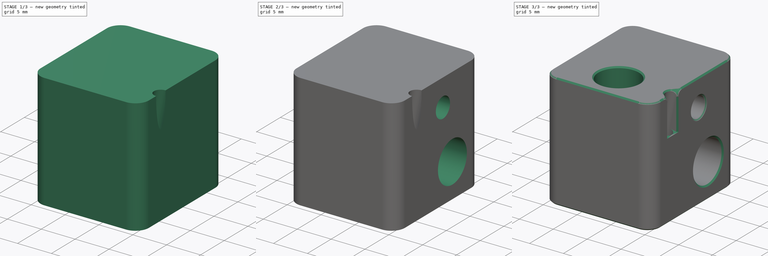
[diagram: build sequence overview — one tinted view per stage of 3, left to right]
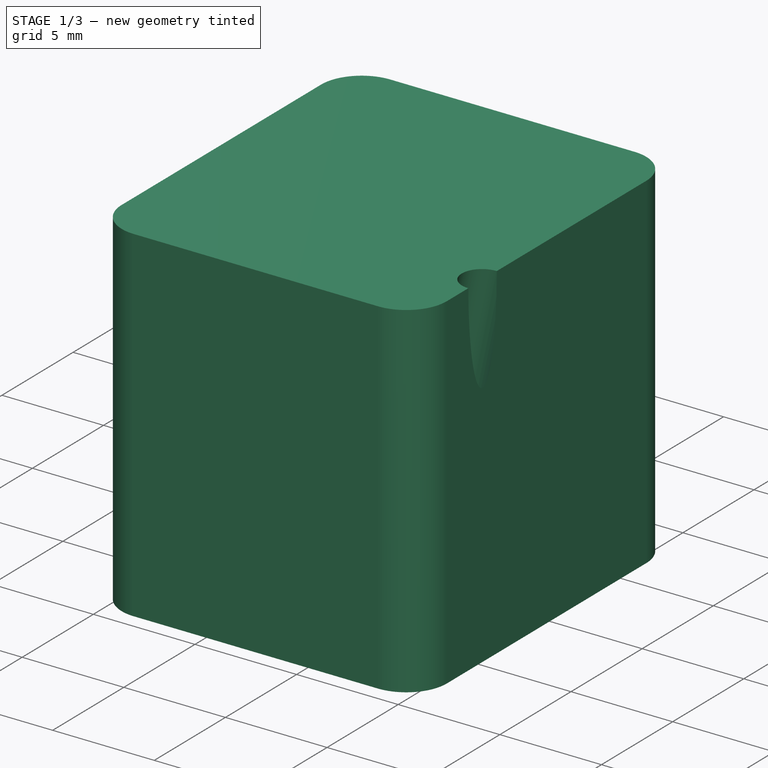
[diagram: stage 1 of 3 — iso view after this stage's code; geometry added in this stage tinted green]
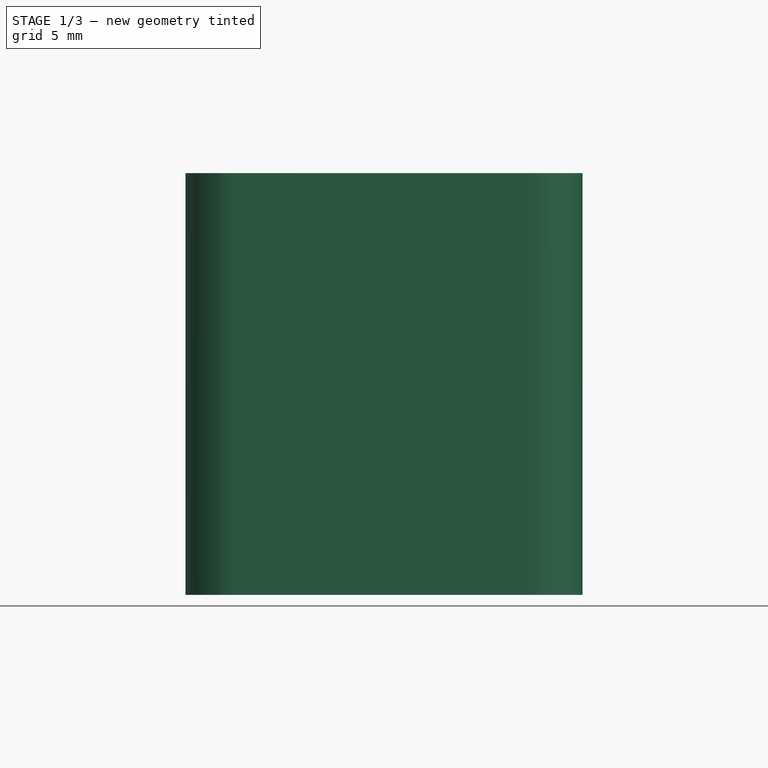
[diagram: stage 1 of 3 — front view after this stage's code; geometry added in this stage tinted green]
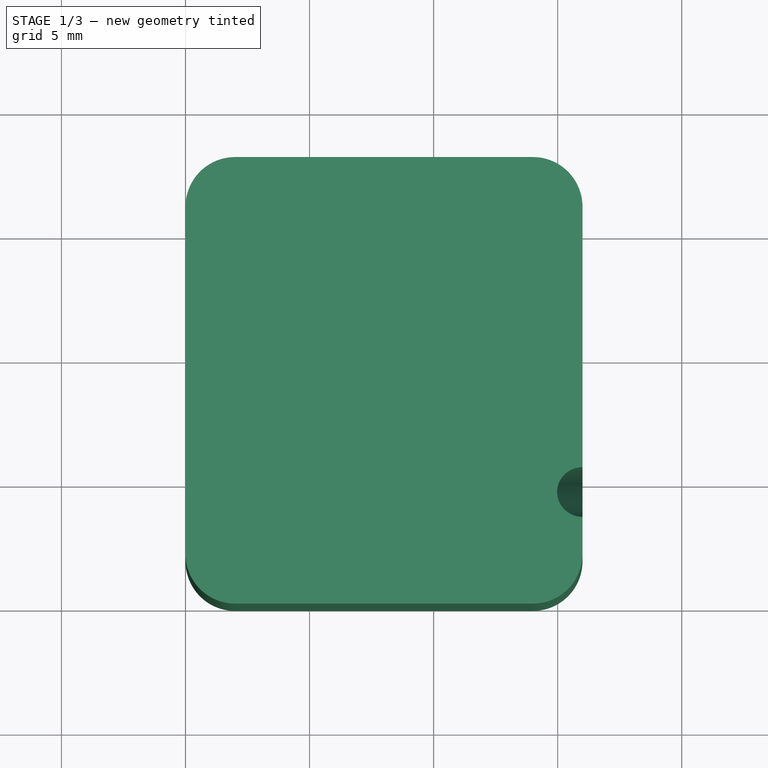
[diagram: stage 1 of 3 — top view after this stage's code; geometry added in this stage tinted green]
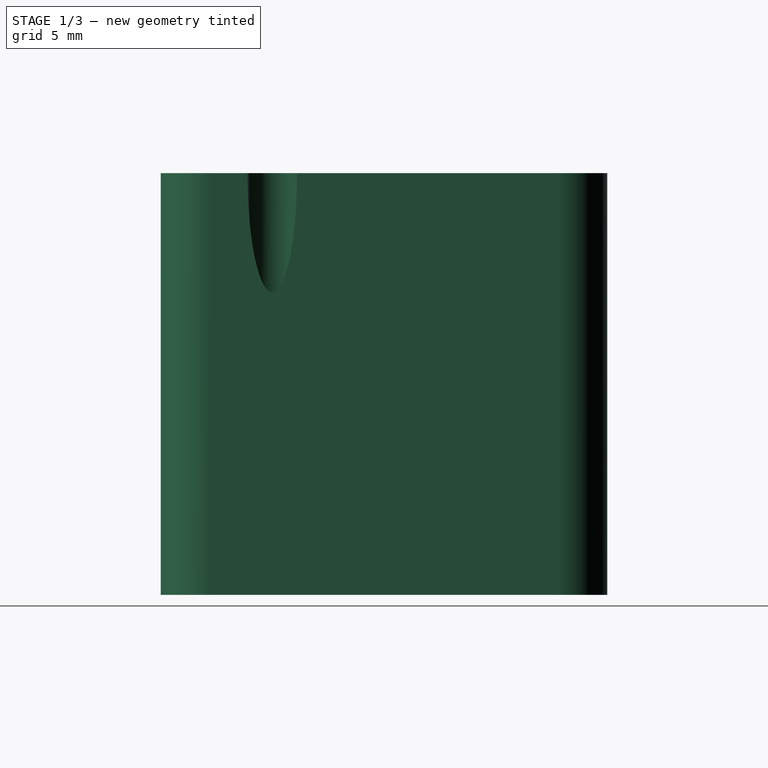
[diagram: stage 1 of 3 — right view after this stage's code; geometry added in this stage tinted green]
FCSTD DOCUMENT  (FreeCAD 0.17R13662 (Git))
Label: ao-hex_heater-block_revA
License: All rights reserved
LicenseURL: http://en.wikipedia.org/wiki/All_rights_reserved
objects: Drawing::FeatureViewPython×51, Sketcher::SketchObject×6, PartDesign::Pocket×5, Drawing::FeatureViewPart×4, PartDesign::Plane×2, PartDesign::Pad×1, PartDesign::Fillet×1, PartDesign::Chamfer×1, PartDesign::Body×1, Drawing::FeaturePage×1
note: 23 computed .brp shape members not serialized (recipe doc carries the construction recipe); baked Part::Feature solids carry a one-line shape summary decoded from their .brp

FEATURE [Sketcher::SketchObject] Sketch
  MapMode = 5
  Support = -> [XY_Plane]
  sketch-geometry (4):
    g0: LineSegment StartX=0 StartY=0 StartZ=0 EndX=16 EndY=0 EndZ=0
    g1: LineSegment StartX=16 StartY=0 StartZ=0 EndX=16 EndY=18 EndZ=0
    g2: LineSegment StartX=16 StartY=18 StartZ=0 EndX=0 EndY=18 EndZ=0
    g3: LineSegment StartX=0 StartY=18 StartZ=0 EndX=0 EndY=0 EndZ=0
  constraints (11):
    c: Coincident(g0,g1)
    c: Coincident(g1,g2)
    c: Coincident(g2,g3)
    c: Coincident(g3,g0)
    c: Horizontal(g0)
    c: Horizontal(g2)
    c: Vertical(g1)
    c: Vertical(g3)
    c: Coincident(g0,g-1)
    c: DistanceX(g2,g2) = 16
    c: DistanceY(g1,g1) = 18
FEATURE [PartDesign::Pad] Pad
  Length = 17
  Length2 = 100
  Profile = -> Sketch
  Type = 0
FEATURE [PartDesign::Fillet] Fillet
  Base = -> Pad [Edge5,Edge8,Edge2,Edge1]
  BaseFeature = -> Pad
  Radius = 2
FEATURE [Sketcher::SketchObject] Sketch001
  MapMode = 5
  Placement = pos=(0,0,17) rot=(0,0,1;0rad)
  Support = -> [Fillet]
  sketch-geometry (1):
    g0: Circle CenterX=8 CenterY=4.5 CenterZ=0 NormalX=0 NormalY=0 NormalZ=1 AngleXU=0 Radius=3
  constraints (3):
    c: DistanceX(g0) = 8
    c: DistanceY(g0) = 4.5
    c: Radius(g0) = 3
FEATURE [PartDesign::Plane] DatumPlane
  AttachmentOffset = pos=(2,0,3) rot=(0,1,0;0.20944rad)
  MapMode = 5
  Placement = pos=(2,0,20) rot=(0,1,0;0.20944rad)
FEATURE [Sketcher::SketchObject] Sketch002
  MapMode = 5
  Placement = pos=(2,0,20) rot=(0,1,0;0.20944rad)
  Support = -> [DatumPlane]
  sketch-geometry (1):
    g0: Circle CenterX=14.3178 CenterY=4.5 CenterZ=0 NormalX=0 NormalY=0 NormalZ=1 AngleXU=0 Radius=1
  constraints (2):
    c: DistanceY(g0) = 4.5
    c: Radius(g0) = 1
FEATURE [PartDesign::Pocket] Pocket001
  BaseFeature = -> Fillet
  Length = 14.75
  Length2 = 100
  Profile = -> Sketch002
  Type = 0
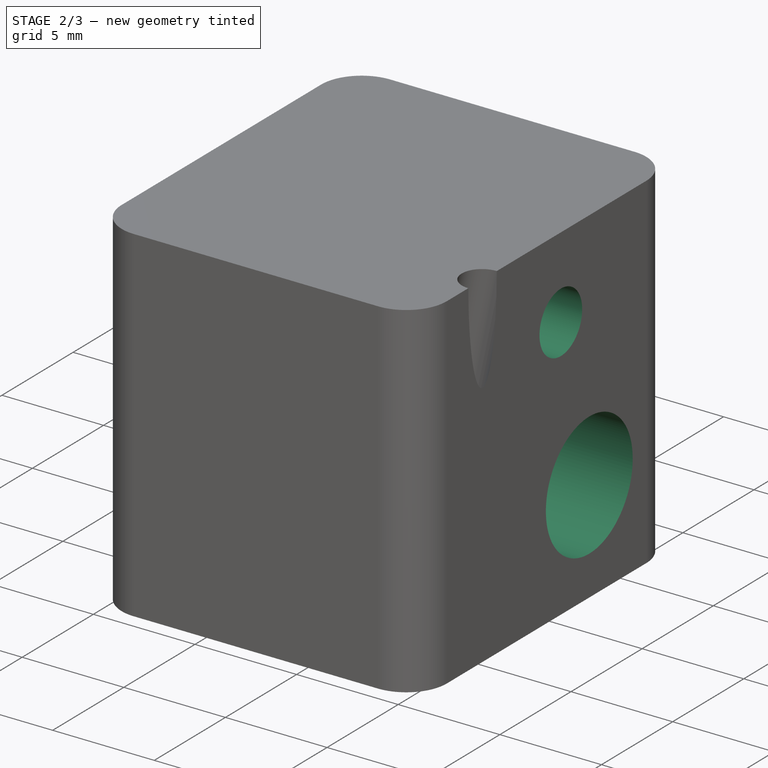
[diagram: stage 2 of 3 — iso view after this stage's code; geometry added in this stage tinted green]
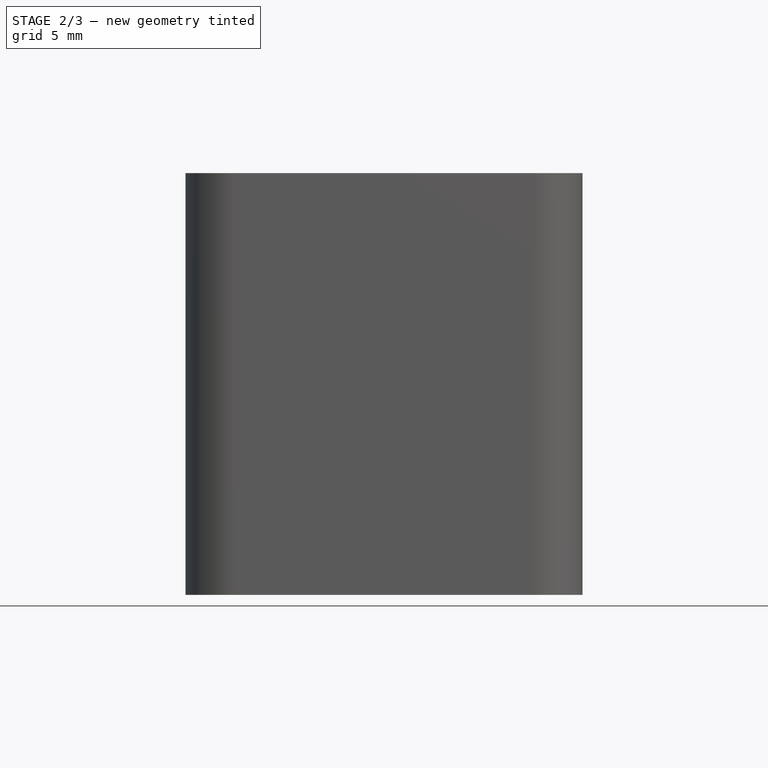
[diagram: stage 2 of 3 — front view after this stage's code; geometry added in this stage tinted green]
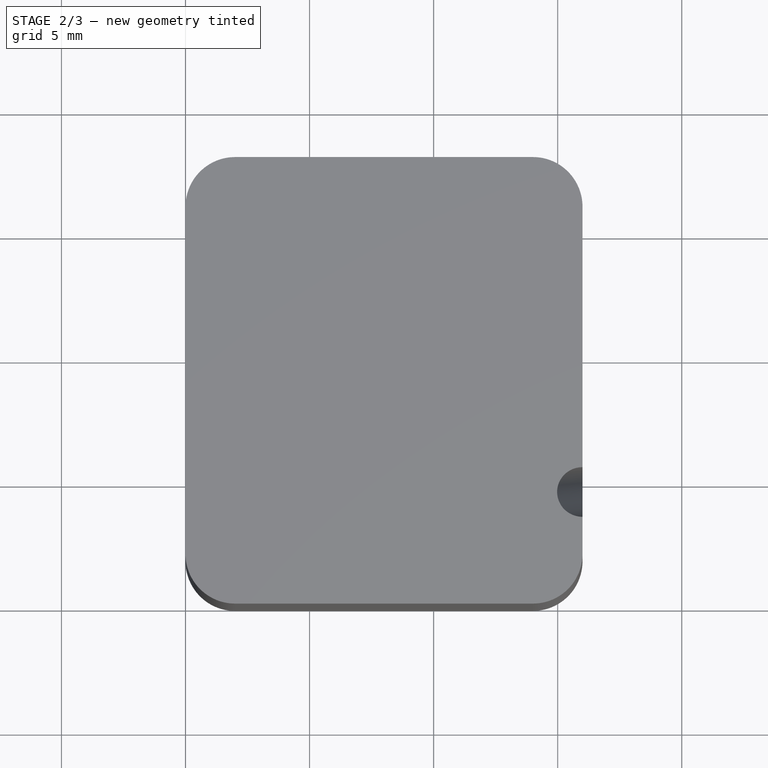
[diagram: stage 2 of 3 — top view after this stage's code; geometry added in this stage tinted green]
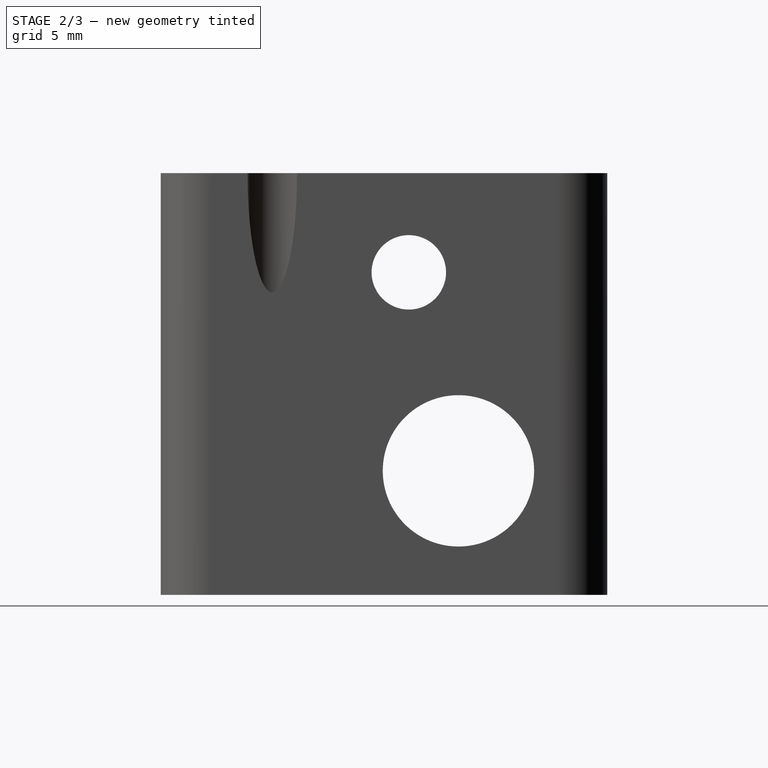
[diagram: stage 2 of 3 — right view after this stage's code; geometry added in this stage tinted green]
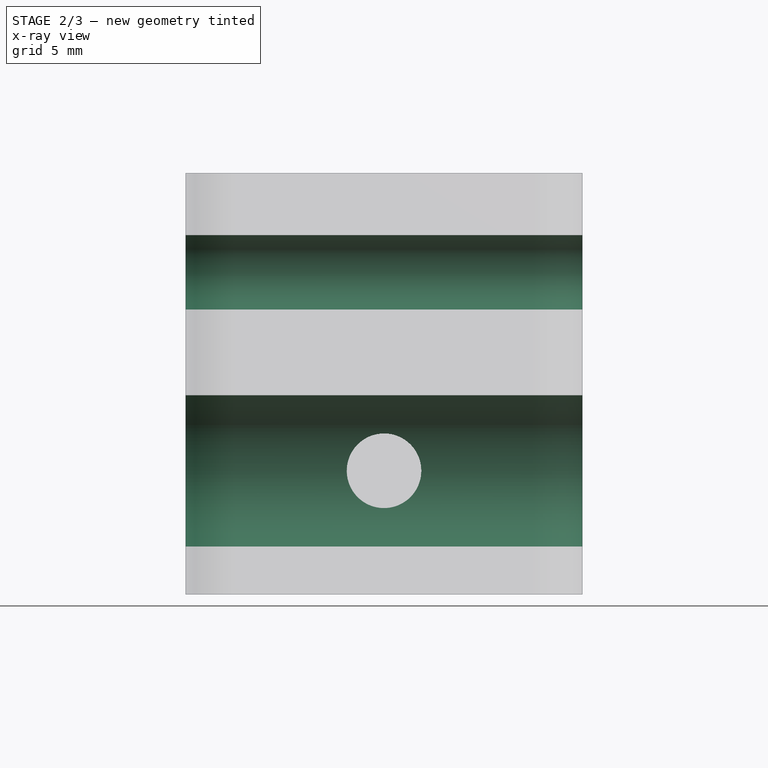
[diagram: stage 2 of 3 — x-ray composite at the front view; earlier geometry ghosted, this stage's added geometry solid]
FEATURE [Sketcher::SketchObject] Sketch003
  MapMode = 5
  Placement = pos=(16,0,0) rot=(0.57735,0.57735,0.57735;2.0944rad)
  Support = -> [Pocket001]
  sketch-geometry (2):
    g0: Circle CenterX=10 CenterY=13 CenterZ=0 NormalX=0 NormalY=0 NormalZ=1 AngleXU=0 Radius=1.5
    g1: Circle CenterX=12 CenterY=5 CenterZ=0 NormalX=0 NormalY=0 NormalZ=1 AngleXU=0 Radius=3.05
  constraints (6):
    c: Radius(g0) = 1.5
    c: Radius(g1) = 3.05
    c: DistanceX(g0) = 10
    c: DistanceY(g0) = 13
    c: DistanceX(g1) = 12
    c: DistanceY(g1) = 5
FEATURE [PartDesign::Pocket] Pocket002
  BaseFeature = -> Pocket001
  Length = 5
  Length2 = 100
  Profile = -> Sketch003
  Type = 1
FEATURE [Sketcher::SketchObject] Sketch004
  MapMode = 5
  Placement = pos=(0,18,0) rot=(0,0.707107,0.707107;3.14159rad)
  Support = -> [Pocket002]
  sketch-geometry (1):
    g0: Circle CenterX=-8 CenterY=5 CenterZ=0 NormalX=0 NormalY=0 NormalZ=1 AngleXU=0 Radius=1.5
  constraints (3):
    c: DistanceY(g0) = 5
    c: DistanceX(g0) = -8
    c: Radius(g0) = 1.5
FEATURE [PartDesign::Pocket] Pocket003
  BaseFeature = -> Pocket002
  Length = 0
  Length2 = 100
  Profile = -> Sketch004
  Type = 2
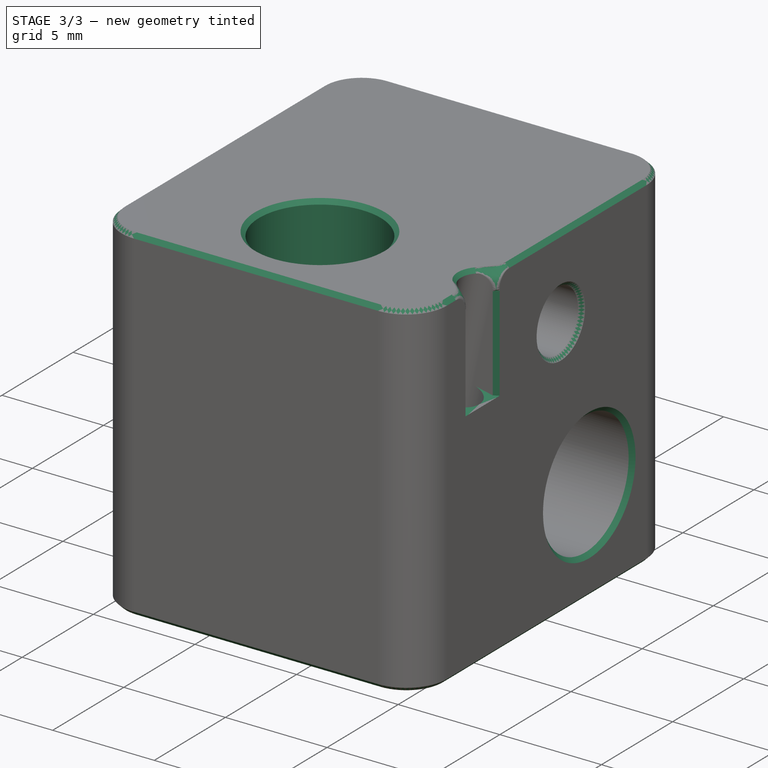
[diagram: stage 3 of 3 — iso view after this stage's code; geometry added in this stage tinted green]
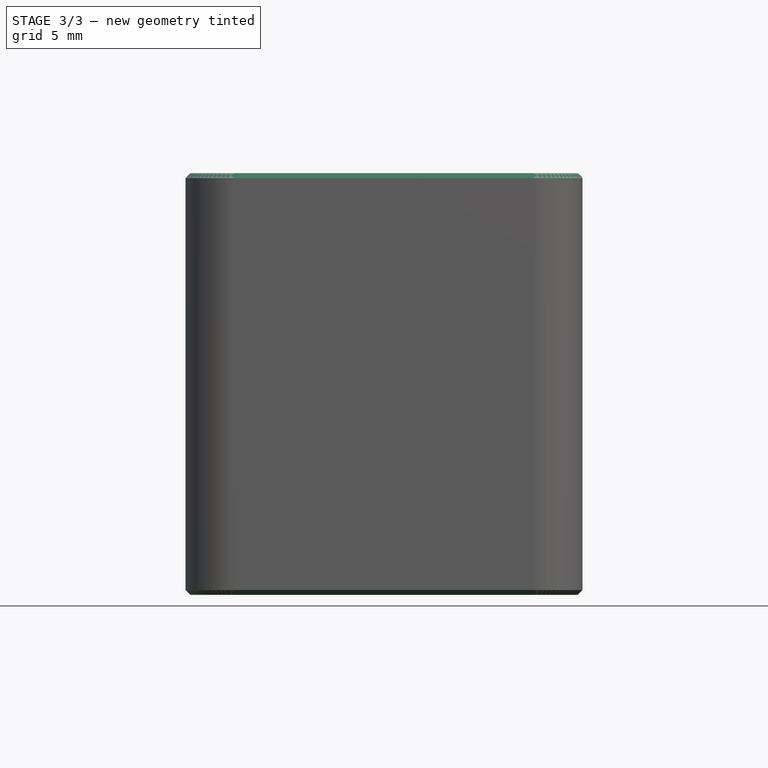
[diagram: stage 3 of 3 — front view after this stage's code; geometry added in this stage tinted green]
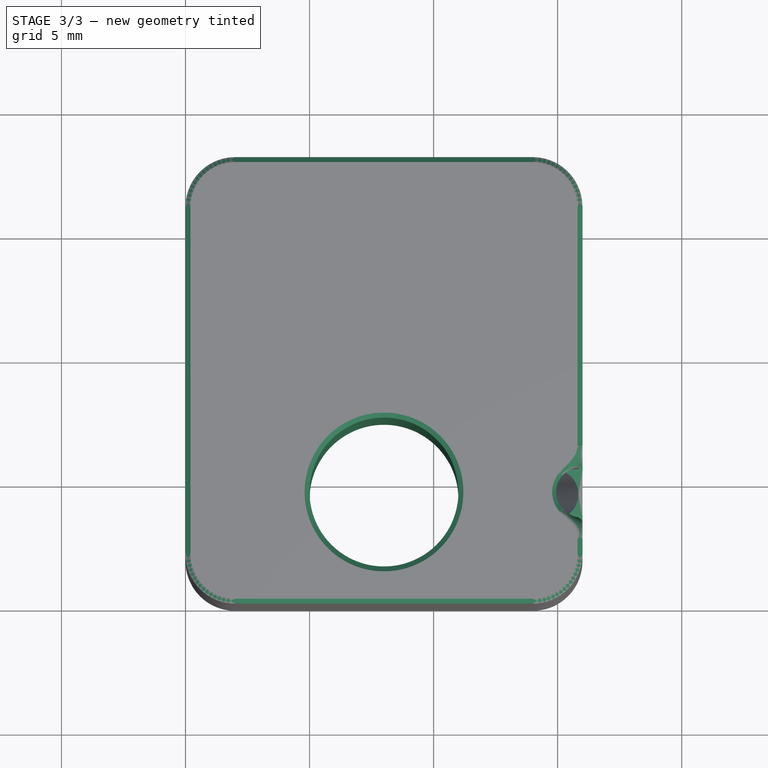
[diagram: stage 3 of 3 — top view after this stage's code; geometry added in this stage tinted green]
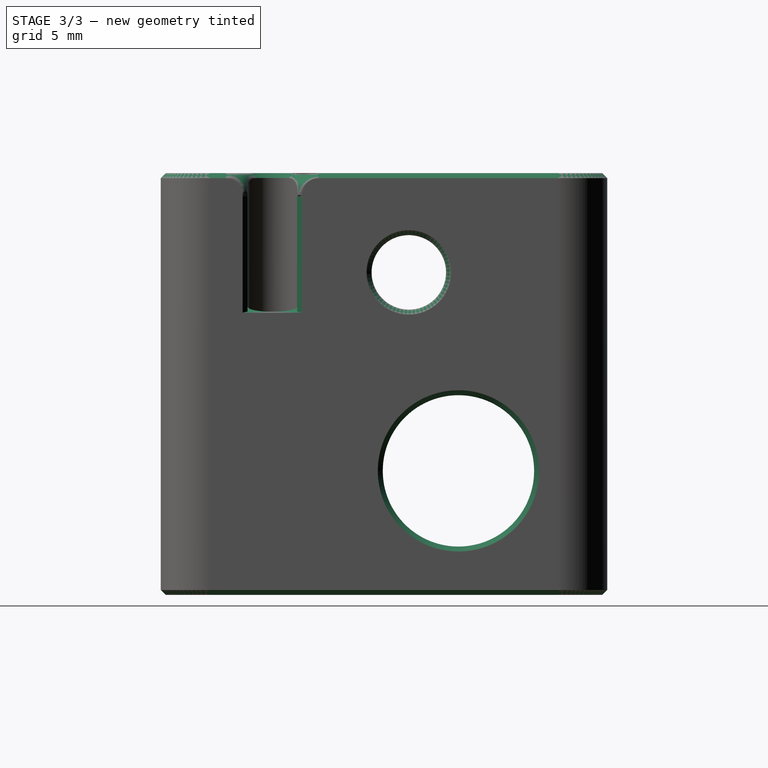
[diagram: stage 3 of 3 — right view after this stage's code; geometry added in this stage tinted green]
FEATURE [PartDesign::Plane] DatumPlane001
  AttachmentOffset = pos=(0,17,0) rot=(1,0,0;0.20944rad)
  MapMode = 5
  Placement = pos=(16,0,17) rot=(0.61363,0.61363,0.496908;2.21925rad)
  Support = -> [Pocket003]
FEATURE [Sketcher::SketchObject] Sketch005
  ExternalGeometry = -> [Pocket003]
  MapMode = 5
  Placement = pos=(16,0,17) rot=(0.61363,0.61363,0.496908;2.21925rad)
  Support = -> [DatumPlane001]
  sketch-geometry (4):
    g0: LineSegment StartX=3.5 StartY=0 StartZ=0 EndX=5.5 EndY=0 EndZ=0
    g1: LineSegment StartX=5.5 StartY=0 StartZ=0 EndX=5.5 EndY=-5.5 EndZ=0
    g2: LineSegment StartX=5.5 StartY=-5.5 StartZ=0 EndX=3.5 EndY=-5.5 EndZ=0
    g3: LineSegment StartX=3.5 StartY=-5.5 StartZ=0 EndX=3.5 EndY=0 EndZ=0
  constraints (10):
    c: Coincident(g0,g1)
    c: Coincident(g1,g2)
    c: Coincident(g2,g3)
    c: Coincident(g3,g0)
    c: Horizontal(g0)
    c: Horizontal(g2)
    c: Vertical(g1)
    c: Vertical(g3)
    c: DistanceX(g0) = 5.5
    c: DistanceY(g1) = -5.5
FEATURE [PartDesign::Pocket] Pocket004
  BaseFeature = -> Pocket003
  Length = 5
  Length2 = 100
  Profile = -> Sketch005
  Reversed = true
  Type = 0
FEATURE [PartDesign::Pocket] Pocket
  BaseFeature = -> Pocket004
  Length = 5
  Length2 = 100
  Profile = -> Sketch001
  Type = 1
FEATURE [PartDesign::Chamfer] Chamfer
  Base = -> Pocket [Edge23,Edge19,Edge16,Edge4,Edge14,Edge17,Edge18,Edge20,Edge22,Edge21,Edge29,Edge31,Edge6,Edge27,Edge26,Edge24,Edge36,Edge32,Edge33,Edge12]
  BaseFeature = -> Pocket
  Size = 0.2
FEATURE [PartDesign::Body] Body
  Group = -> [Sketch,Pad,Fillet,Sketch001,DatumPlane,Sketch002,Pocket001,Sketch003,Pocket002,Sketch004,Pocket003,DatumPlane001,Sketch005,Pocket004,Pocket,Chamfer]
  Origin = -> Origin
  Tip = -> Chamfer
FEATURE [Drawing::FeatureViewPart] Ortho  label="right"
  Direction = (1,0,0)
  HiddenWidth = 0.15
  LineWidth = 0.35
  Rotation = -90
  Scale = 2
  ShowHiddenLines = false
  ShowSmoothLines = false
  Source = -> Chamfer
  Tolerance = 0.05
  ViewResult = <blob: 8941 chars omitted>
  Visible = true
  X = 32
  Y = 142.002
FEATURE [Drawing::FeatureViewPart] Ortho001  label="top"
  Direction = (0,0,1)
  HiddenWidth = 0.15
  LineWidth = 0.35
  Rotation = 90
  Scale = 2
  ShowHiddenLines = false
  ShowSmoothLines = false
  Source = -> Chamfer
  Tolerance = 0.05
  ViewResult = <blob: 6789 chars omitted>
  Visible = true
  X = 32
  Y = 33.9989
FEATURE [Drawing::FeatureViewPart] Ortho002  label="iso"
  Direction = (0.57735,0.57735,0.57735)
  HiddenWidth = 0.15
  LineWidth = 0.35
  Rotation = 120
  Scale = 2
  ShowHiddenLines = false
  ShowSmoothLines = true
  Source = -> Chamfer
  Tolerance = 0.05
  ViewResult = <blob: 8167 chars omitted>
  Visible = true
  X = 137.59
  Y = 50.0011
FEATURE [Drawing::FeatureViewPart] Ortho003  label="back"
  Direction = (0,1,0)
  HiddenWidth = 0.15
  LineWidth = 0.35
  Rotation = -90
  Scale = 2
  ShowHiddenLines = true
  ShowSmoothLines = false
  Source = -> Chamfer
  Tolerance = 0.05
  ViewResult = <blob: 22610 chars omitted>
  Visible = true
  X = 154
  Y = 142.002
FEATURE [Drawing::FeatureViewPython] dim001  label="top001"  # drawing view (typed FeaturePython)
  Rotation = 0
  ViewResult = <g> <line x1="32.000000" y1="35.998900" x2="32.000000" y2="29.000000" style="stroke:rgb(0,0,255);stroke-width:0.30" />\n<line x1="41.000000" y1="47.998876" x2="41.000000" y2="29.000000" style="stroke:rgb(0,0,255);stroke-width:0.30" />\n<line x1="32.000000" y1="30.000000" x2="41.000000" y2="30.000000" style="stroke:rgb(0,0,255);stroke-width:0.30" />\n<polygon points="32.000000,30.000000 29.000000,29.000000 28.000000,30.000000 29.000000,31.000000" style="fill:rgb(0,0,255);stroke:rgb(0,0,255);stroke-width:0" />\n<polygon points="41.000000,30.000000 44.000000,31.000000 45.000000,30.000000 44.000000,29.000000" style="fill:rgb(0,0,255);stroke:rgb(0,0,255);stroke-width:0" />\n<text x="36.500000" y="28.000000" font-family="Verdana" font-size="3.6" fill="rgb(0,0,255)" text-anchor="middle" transform="rotate(0.000000 36.500000,28.000000)" >4.50 </text> </g> 
  Visible = true
  X = 0
  Y = 0
  arrowL1 = 3
  arrowL2 = 1
  arrowW = 2
  arrow_scheme = 0
  autoPlaceOffset = 2
  autoPlaceText = true
  click1_x = 35
  click1_y = 30
  click2_x = 35
  click2_y = 30
  comma_decimal_place = false
  dimension_line_overshoot = 1
  gap_datum_points = 2
  halfDimension_linear = false
  lineColor = rgb(0,0,255)
  strokeWidth = 0.3
  textFormat_linear = %(value)3.2f 
  textRenderer_color = rgb(0,0,255)
  textRenderer_family = Verdana
  textRenderer_size = 3.6
  unit_custom_scale = 1
  unit_scheme = 0
FEATURE [Drawing::FeatureViewPython] dim004  label="right001"  # drawing view (typed FeaturePython)
  Rotation = 0
  ViewResult = <g> <line x1="32.000000" y1="106.402000" x2="32.000000" y2="99.000000" style="stroke:rgb(0,0,255);stroke-width:0.30" />\n<line x1="52.000000" y1="114.001967" x2="52.000000" y2="99.000000" style="stroke:rgb(0,0,255);stroke-width:0.30" />\n<line x1="32.000000" y1="100.000000" x2="52.000000" y2="100.000000" style="stroke:rgb(0,0,255);stroke-width:0.30" />\n<polygon points="32.000000,100.000000 35.000000,101.000000 36.000000,100.000000 35.000000,99.000000" style="fill:rgb(0,0,255);stroke:rgb(0,0,255);stroke-width:0" />\n<polygon points="52.000000,100.000000 49.000000,99.000000 48.000000,100.000000 49.000000,101.000000" style="fill:rgb(0,0,255);stroke:rgb(0,0,255);stroke-width:0" />\n<text x="42.000000" y="98.000000" font-family="Verdana" font-size="3.6" fill="rgb(0,0,255)" text-anchor="middle" transform="rotate(0.000000 42.000000,98.000000)" >10.00 </text> </g> 
  Visible = true
  X = 0
  Y = 0
  arrowL1 = 3
  arrowL2 = 1
  arrowW = 2
  arrow_scheme = 0
  autoPlaceOffset = 2
  autoPlaceText = true
  click1_x = 45
  click1_y = 100
  click2_x = 45
  click2_y = 100
  comma_decimal_place = false
  dimension_line_overshoot = 1
  gap_datum_points = 2
  halfDimension_linear = false
  lineColor = rgb(0,0,255)
  strokeWidth = 0.3
  textFormat_linear = %(value)3.2f 
  textRenderer_color = rgb(0,0,255)
  textRenderer_family = Verdana
  textRenderer_size = 3.6
  unit_custom_scale = 1
  unit_scheme = 0
FEATURE [Drawing::FeatureViewPython] dim005  # drawing view (typed FeaturePython)
  Rotation = 0
  ViewResult = <g> <line x1="32.000000" y1="143.602000" x2="32.000000" y2="151.000000" style="stroke:rgb(0,0,255);stroke-width:0.30" />\n<line x1="56.000000" y1="134.002033" x2="56.000000" y2="151.000000" style="stroke:rgb(0,0,255);stroke-width:0.30" />\n<line x1="32.000000" y1="150.000000" x2="56.000000" y2="150.000000" style="stroke:rgb(0,0,255);stroke-width:0.30" />\n<polygon points="32.000000,150.000000 35.000000,151.000000 36.000000,150.000000 35.000000,149.000000" style="fill:rgb(0,0,255);stroke:rgb(0,0,255);stroke-width:0" />\n<polygon points="56.000000,150.000000 53.000000,149.000000 52.000000,150.000000 53.000000,151.000000" style="fill:rgb(0,0,255);stroke:rgb(0,0,255);stroke-width:0" />\n<text x="44.000000" y="148.000000" font-family="Verdana" font-size="3.6" fill="rgb(0,0,255)" text-anchor="middle" transform="rotate(0.000000 44.000000,148.000000)" >12.00 </text> </g> 
  Visible = true
  X = 0
  Y = 0
  arrowL1 = 3
  arrowL2 = 1
  arrowW = 2
  arrow_scheme = 0
  autoPlaceOffset = 2
  autoPlaceText = true
  click1_x = 45
  click1_y = 150
  click2_x = 45
  click2_y = 150
  comma_decimal_place = false
  dimension_line_overshoot = 1
  gap_datum_points = 2
  halfDimension_linear = false
  lineColor = rgb(0,0,255)
  strokeWidth = 0.3
  textFormat_linear = %(value)3.2f 
  textRenderer_color = rgb(0,0,255)
  textRenderer_family = Verdana
  textRenderer_size = 3.6
  unit_custom_scale = 1
  unit_scheme = 0
FEATURE [Drawing::FeatureViewPython] dim006  # drawing view (typed FeaturePython)
  Rotation = 0
  ViewResult = <g> <line x1="32.000000" y1="143.602000" x2="32.000000" y2="161.000000" style="stroke:rgb(0,0,255);stroke-width:0.30" />\n<line x1="68.000000" y1="143.602000" x2="68.000000" y2="161.000000" style="stroke:rgb(0,0,255);stroke-width:0.30" />\n<line x1="32.000000" y1="160.000000" x2="68.000000" y2="160.000000" style="stroke:rgb(0,0,255);stroke-width:0.30" />\n<polygon points="32.000000,160.000000 35.000000,161.000000 36.000000,160.000000 35.000000,159.000000" style="fill:rgb(0,0,255);stroke:rgb(0,0,255);stroke-width:0" />\n<polygon points="68.000000,160.000000 65.000000,159.000000 64.000000,160.000000 65.000000,161.000000" style="fill:rgb(0,0,255);stroke:rgb(0,0,255);stroke-width:0" />\n<text x="50.000000" y="158.000000" font-family="Verdana" font-size="3.6" fill="rgb(0,0,255)" text-anchor="middle" transform="rotate(0.000000 50.000000,158.000000)" >18.00 </text> </g> 
  Visible = true
  X = 0
  Y = 0
  arrowL1 = 3
  arrowL2 = 1
  arrowW = 2
  arrow_scheme = 0
  autoPlaceOffset = 2
  autoPlaceText = true
  click1_x = 55
  click1_y = 160
  click2_x = 55
  click2_y = 160
  comma_decimal_place = false
  dimension_line_overshoot = 1
  gap_datum_points = 2
  halfDimension_linear = false
  lineColor = rgb(0,0,255)
  strokeWidth = 0.3
  textFormat_linear = %(value)3.2f 
  textRenderer_color = rgb(0,0,255)
  textRenderer_family = Verdana
  textRenderer_size = 3.6
  unit_custom_scale = 1
  unit_scheme = 0
FEATURE [Drawing::FeatureViewPython] dim007  # drawing view (typed FeaturePython)
  Rotation = 0
  ViewResult = <g> <line x1="37.000000" y1="119.247800" x2="29.000000" y2="119.247800" style="stroke:rgb(0,0,255);stroke-width:0.30" />\n<line x1="34.000000" y1="108.002000" x2="29.000000" y2="108.002000" style="stroke:rgb(0,0,255);stroke-width:0.30" />\n<line x1="30.000000" y1="119.247800" x2="30.000000" y2="108.002000" style="stroke:rgb(0,0,255);stroke-width:0.30" />\n<polygon points="30.000000,119.247800 31.000000,116.247800 30.000000,115.247800 29.000000,116.247800" style="fill:rgb(0,0,255);stroke:rgb(0,0,255);stroke-width:0" />\n<polygon points="30.000000,108.002000 29.000000,111.002000 30.000000,112.002000 31.000000,111.002000" style="fill:rgb(0,0,255);stroke:rgb(0,0,255);stroke-width:0" />\n<text x="28.000000" y="113.624900" font-family="Verdana" font-size="3.6" fill="rgb(0,0,255)" text-anchor="middle" transform="rotate(-90.000000 28.000000,113.624900)" >5.6 </text> </g> 
  Visible = true
  X = 0
  Y = 0
  arrowL1 = 3
  arrowL2 = 1
  arrowW = 2
  arrow_scheme = 0
  autoPlaceOffset = 2
  autoPlaceText = true
  click1_x = 30
  click1_y = 110
  click2_x = 30
  click2_y = 110
  comma_decimal_place = false
  dimension_line_overshoot = 1
  gap_datum_points = 2
  halfDimension_linear = false
  lineColor = rgb(0,0,255)
  strokeWidth = 0.3
  textFormat_linear = %(value)3.1f 
  textRenderer_color = rgb(0,0,255)
  textRenderer_family = Verdana
  textRenderer_size = 3.6
  unit_custom_scale = 1
  unit_scheme = 0
FEATURE [Drawing::FeatureViewPython] dim008  # drawing view (typed FeaturePython)
  Rotation = 0
  ViewResult = <g> <line x1="42.748260" y1="108.002000" x2="19.000000" y2="108.002000" style="stroke:rgb(0,0,255);stroke-width:0.30" />\n<line x1="34.000000" y1="142.002000" x2="19.000000" y2="142.002000" style="stroke:rgb(0,0,255);stroke-width:0.30" />\n<line x1="20.000000" y1="108.002000" x2="20.000000" y2="142.002000" style="stroke:rgb(0,0,255);stroke-width:0.30" />\n<polygon points="20.000000,108.002000 19.000000,111.002000 20.000000,112.002000 21.000000,111.002000" style="fill:rgb(0,0,255);stroke:rgb(0,0,255);stroke-width:0" />\n<polygon points="20.000000,142.002000 21.000000,139.002000 20.000000,138.002000 19.000000,139.002000" style="fill:rgb(0,0,255);stroke:rgb(0,0,255);stroke-width:0" />\n<text x="18.000000" y="125.002000" font-family="Verdana" font-size="3.6" fill="rgb(0,0,255)" text-anchor="middle" transform="rotate(-90.000000 18.000000,125.002000)" >17.00 </text> </g> 
  Visible = true
  X = 0
  Y = 0
  arrowL1 = 3
  arrowL2 = 1
  arrowW = 2
  arrow_scheme = 0
  autoPlaceOffset = 2
  autoPlaceText = true
  click1_x = 20
  click1_y = 135
  click2_x = 20
  click2_y = 135
  comma_decimal_place = false
  dimension_line_overshoot = 1
  gap_datum_points = 2
  halfDimension_linear = false
  lineColor = rgb(0,0,255)
  strokeWidth = 0.3
  textFormat_linear = %(value)3.2f 
  textRenderer_color = rgb(0,0,255)
  textRenderer_family = Verdana
  textRenderer_size = 3.6
  unit_custom_scale = 1
  unit_scheme = 0
FEATURE [Drawing::FeatureViewPython] dim009  # drawing view (typed FeaturePython)
  Rotation = 0
  ViewResult = <g> <line x1="66.000000" y1="108.002000" x2="76.000000" y2="108.002000" style="stroke:rgb(0,0,255);stroke-width:0.30" />\n<line x1="54.000019" y1="116.002000" x2="76.000000" y2="116.002000" style="stroke:rgb(0,0,255);stroke-width:0.30" />\n<line x1="75.000000" y1="108.002000" x2="75.000000" y2="116.002000" style="stroke:rgb(0,0,255);stroke-width:0.30" />\n<polygon points="75.000000,108.002000 76.000000,105.002000 75.000000,104.002000 74.000000,105.002000" style="fill:rgb(0,0,255);stroke:rgb(0,0,255);stroke-width:0" />\n<polygon points="75.000000,116.002000 74.000000,119.002000 75.000000,120.002000 76.000000,119.002000" style="fill:rgb(0,0,255);stroke:rgb(0,0,255);stroke-width:0" />\n<text x="73.000000" y="125.000000" font-family="Verdana" font-size="3.6" fill="rgb(0,0,255)" text-anchor="inherit" transform="rotate(-90.000000 73.000000,125.000000)" >4.00 </text> </g> 
  Visible = true
  X = 0
  Y = 0
  arrowL1 = 3
  arrowL2 = 1
  arrowW = 2
  arrow_scheme = 0
  autoPlaceOffset = 2
  autoPlaceText = false
  click1_x = 75
  click1_y = 110
  click2_x = 73
  click2_y = 125
  comma_decimal_place = false
  dimension_line_overshoot = 1
  gap_datum_points = 2
  halfDimension_linear = false
  lineColor = rgb(0,0,255)
  strokeWidth = 0.3
  textFormat_linear = %(value)3.2f 
  textRenderer_color = rgb(0,0,255)
  textRenderer_family = Verdana
  textRenderer_size = 3.6
  unit_custom_scale = 1
  unit_scheme = 0
FEATURE [Drawing::FeatureViewPython] dim010  # drawing view (typed FeaturePython)
  Rotation = 0
  ViewResult = <g> <line x1="66.000000" y1="108.002000" x2="86.000000" y2="108.002000" style="stroke:rgb(0,0,255);stroke-width:0.30" />\n<line x1="58.000019" y1="132.002000" x2="86.000000" y2="132.002000" style="stroke:rgb(0,0,255);stroke-width:0.30" />\n<line x1="85.000000" y1="108.002000" x2="85.000000" y2="132.002000" style="stroke:rgb(0,0,255);stroke-width:0.30" />\n<polygon points="85.000000,108.002000 84.000000,111.002000 85.000000,112.002000 86.000000,111.002000" style="fill:rgb(0,0,255);stroke:rgb(0,0,255);stroke-width:0" />\n<polygon points="85.000000,132.002000 86.000000,129.002000 85.000000,128.002000 84.000000,129.002000" style="fill:rgb(0,0,255);stroke:rgb(0,0,255);stroke-width:0" />\n<text x="83.000000" y="120.002000" font-family="Verdana" font-size="3.6" fill="rgb(0,0,255)" text-anchor="middle" transform="rotate(-90.000000 83.000000,120.002000)" >12.00 </text> </g> 
  Visible = true
  X = 0
  Y = 0
  arrowL1 = 3
  arrowL2 = 1
  arrowW = 2
  arrow_scheme = 0
  autoPlaceOffset = 2
  autoPlaceText = true
  click1_x = 85
  click1_y = 125
  click2_x = 85
  click2_y = 125
  comma_decimal_place = false
  dimension_line_overshoot = 1
  gap_datum_points = 2
  halfDimension_linear = false
  lineColor = rgb(0,0,255)
  strokeWidth = 0.3
  textFormat_linear = %(value)3.2f 
  textRenderer_color = rgb(0,0,255)
  textRenderer_family = Verdana
  textRenderer_size = 3.6
  unit_custom_scale = 1
  unit_scheme = 0
FEATURE [Drawing::FeatureViewPython] dim014  # drawing view (typed FeaturePython)
  Rotation = 0
  ViewResult = <g> <line x1="32.000000" y1="63.998900" x2="32.000000" y2="76.000000" style="stroke:rgb(0,0,255);stroke-width:0.30" />\n<line x1="40.999873" y1="65.712078" x2="40.999873" y2="76.000000" style="stroke:rgb(0,0,255);stroke-width:0.30" />\n<line x1="32.000000" y1="75.000000" x2="40.999873" y2="75.000000" style="stroke:rgb(0,0,255);stroke-width:0.30" />\n<polygon points="32.000000,75.000000 29.000000,74.000000 28.000000,75.000000 29.000000,76.000000" style="fill:rgb(0,0,255);stroke:rgb(0,0,255);stroke-width:0" />\n<polygon points="40.999873,75.000000 43.999873,76.000000 44.999873,75.000000 43.999873,74.000000" style="fill:rgb(0,0,255);stroke:rgb(0,0,255);stroke-width:0" />\n<text x="36.499936" y="73.000000" font-family="Verdana" font-size="3.6" fill="rgb(0,0,255)" text-anchor="middle" transform="rotate(0.000000 36.499936,73.000000)" >4.50 </text> </g> 
  Visible = true
  X = 0
  Y = 0
  arrowL1 = 3
  arrowL2 = 1
  arrowW = 2
  arrow_scheme = 0
  autoPlaceOffset = 2
  autoPlaceText = true
  click1_x = 35
  click1_y = 75
  click2_x = 35
  click2_y = 75
  comma_decimal_place = false
  dimension_line_overshoot = 1
  gap_datum_points = 2
  halfDimension_linear = false
  lineColor = rgb(0,0,255)
  strokeWidth = 0.3
  textFormat_linear = %(value)3.2f 
  textRenderer_color = rgb(0,0,255)
  textRenderer_family = Verdana
  textRenderer_size = 3.6
  unit_custom_scale = 1
  unit_scheme = 0
FEATURE [Drawing::FeatureViewPython] dim002  # drawing view (typed FeaturePython)
  Rotation = 0
  ViewResult = <g> <line x1="66.000000" y1="65.998900" x2="75.000000" y2="65.998900" style="stroke:rgb(0,0,255);stroke-width:0.30" />\n<line x1="43.000019" y1="63.554300" x2="75.000000" y2="63.554300" style="stroke:rgb(0,0,255);stroke-width:0.30" />\n<line x1="75.000000" y1="65.998900" x2="75.000000" y2="63.554300" style="stroke:rgb(0,0,255);stroke-width:0.30" />\n<polygon points="75.000000,65.998900 74.000000,68.998900 75.000000,69.998900 76.000000,68.998900" style="fill:rgb(0,0,255);stroke:rgb(0,0,255);stroke-width:0" />\n<polygon points="75.000000,63.554300 76.000000,60.554300 75.000000,59.554300 74.000000,60.554300" style="fill:rgb(0,0,255);stroke:rgb(0,0,255);stroke-width:0" />\n<text x="72.500000" y="62.000000" font-family="Verdana" font-size="3.6" fill="rgb(0,0,255)" text-anchor="inherit" transform="rotate(-90.000000 72.500000,62.000000)" >1.22 </text> </g> 
  Visible = true
  X = 0
  Y = 0
  arrowL1 = 3
  arrowL2 = 1
  arrowW = 2
  arrow_scheme = 0
  autoPlaceOffset = 1
  autoPlaceText = false
  click1_x = 75
  click1_y = 60
  click2_x = 72.5
  click2_y = 62
  comma_decimal_place = false
  dimension_line_overshoot = 0
  gap_datum_points = 2
  halfDimension_linear = false
  lineColor = rgb(0,0,255)
  strokeWidth = 0.3
  textFormat_linear = %(value)3.2f 
  textRenderer_color = rgb(0,0,255)
  textRenderer_family = Verdana
  textRenderer_size = 3.6
  unit_custom_scale = 1
  unit_scheme = 0
FEATURE [Drawing::FeatureViewPython] dim003  # drawing view (typed FeaturePython)
  Rotation = 0
  ViewResult = <g> <line x1="59.446400" y1="65.998900" x2="86.000000" y2="65.998900" style="stroke:rgb(0,0,255);stroke-width:0.30" />\n<line x1="43.000001" y1="49.998900" x2="86.000000" y2="49.998900" style="stroke:rgb(0,0,255);stroke-width:0.30" />\n<line x1="85.000000" y1="65.998900" x2="85.000000" y2="49.998900" style="stroke:rgb(0,0,255);stroke-width:0.30" />\n<polygon points="85.000000,65.998900 86.000000,62.998900 85.000000,61.998900 84.000000,62.998900" style="fill:rgb(0,0,255);stroke:rgb(0,0,255);stroke-width:0" />\n<polygon points="85.000000,49.998900 84.000000,52.998900 85.000000,53.998900 86.000000,52.998900" style="fill:rgb(0,0,255);stroke:rgb(0,0,255);stroke-width:0" />\n<text x="83.000000" y="57.998900" font-family="Verdana" font-size="3.6" fill="rgb(0,0,255)" text-anchor="middle" transform="rotate(-90.000000 83.000000,57.998900)" >8.00 </text> </g> 
  Visible = true
  X = 0
  Y = 0
  arrowL1 = 3
  arrowL2 = 1
  arrowW = 2
  arrow_scheme = 0
  autoPlaceOffset = 2
  autoPlaceText = true
  click1_x = 85
  click1_y = 55
  click2_x = 85
  click2_y = 55
  comma_decimal_place = false
  dimension_line_overshoot = 1
  gap_datum_points = 2
  halfDimension_linear = false
  lineColor = rgb(0,0,255)
  strokeWidth = 0.3
  textFormat_linear = %(value)3.2f 
  textRenderer_color = rgb(0,0,255)
  textRenderer_family = Verdana
  textRenderer_size = 3.6
  unit_custom_scale = 1
  unit_scheme = 0
FEATURE [Drawing::FeatureViewPython] dim015  # drawing view (typed FeaturePython)
  Rotation = 0
  ViewResult = <g> <line x1="66.000000" y1="65.998900" x2="96.000000" y2="65.998900" style="stroke:rgb(0,0,255);stroke-width:0.30" />\n<line x1="66.000000" y1="33.998900" x2="96.000000" y2="33.998900" style="stroke:rgb(0,0,255);stroke-width:0.30" />\n<line x1="95.000000" y1="65.998900" x2="95.000000" y2="33.998900" style="stroke:rgb(0,0,255);stroke-width:0.30" />\n<polygon points="95.000000,65.998900 96.000000,62.998900 95.000000,61.998900 94.000000,62.998900" style="fill:rgb(0,0,255);stroke:rgb(0,0,255);stroke-width:0" />\n<polygon points="95.000000,33.998900 94.000000,36.998900 95.000000,37.998900 96.000000,36.998900" style="fill:rgb(0,0,255);stroke:rgb(0,0,255);stroke-width:0" />\n<text x="93.000000" y="49.998900" font-family="Verdana" font-size="3.6" fill="rgb(0,0,255)" text-anchor="middle" transform="rotate(-90.000000 93.000000,49.998900)" >16.00 </text> </g> 
  Visible = true
  X = 0
  Y = 0
  arrowL1 = 3
  arrowL2 = 1
  arrowW = 2
  arrow_scheme = 0
  autoPlaceOffset = 2
  autoPlaceText = true
  click1_x = 95
  click1_y = 50
  click2_x = 95
  click2_y = 50
  comma_decimal_place = false
  dimension_line_overshoot = 1
  gap_datum_points = 2
  halfDimension_linear = false
  lineColor = rgb(0,0,255)
  strokeWidth = 0.3
  textFormat_linear = %(value)3.2f 
  textRenderer_color = rgb(0,0,255)
  textRenderer_family = Verdana
  textRenderer_size = 3.6
  unit_custom_scale = 1
  unit_scheme = 0
FEATURE [Drawing::FeatureViewPython] grabPoint002  # drawing view (typed FeaturePython)
  Rotation = 0
  ViewResult = <g> <line x1="54.1188276183" y1="113.585001066" x2="54.1188276183" y2="113.585001066" style="stroke:rgb(0,0,0);stroke-width:0.01" /> </g> 
  Visible = true
  X = 0
  Y = 0
  click1_x = 54.1188
  click1_y = 113.585
FEATURE [Drawing::FeatureViewPython] grabPoint003  # drawing view (typed FeaturePython)
  Rotation = 0
  ViewResult = <g> <line x1="127.193404107" y1="134.162075604" x2="127.193404107" y2="134.162075604" style="stroke:rgb(0,0,0);stroke-width:0.01" /> </g> 
  Visible = true
  X = 0
  Y = 0
  click1_x = 127.193
  click1_y = 134.162
FEATURE [Drawing::FeatureViewPython] grabPoint004  # drawing view (typed FeaturePython)
  Rotation = 0
  ViewResult = <g> <line x1="60.618987452" y1="136.054179459" x2="60.618987452" y2="136.054179459" style="stroke:rgb(0,0,0);stroke-width:0.01" /> </g> 
  Visible = true
  X = 0
  Y = 0
  click1_x = 60.619
  click1_y = 136.054
FEATURE [Drawing::FeatureViewPython] grabPoint001  # drawing view (typed FeaturePython)
  Rotation = 0
  ViewResult = <g> <line x1="45.4449489266" y1="45.7590845183" x2="45.4449489266" y2="45.7590845183" style="stroke:rgb(0,0,0);stroke-width:0.01" /> </g> 
  Visible = true
  X = 0
  Y = 0
  click1_x = 45.4449
  click1_y = 45.7591
FEATURE [Drawing::FeatureViewPython] weld001  # drawing view (typed FeaturePython)
  Rotation = 0
  ViewResult = <g   >\n<line x1="65.000000" y1="20.000000" x2="45.444949" y2="45.759085" style="stroke:rgb(0,0,255);stroke-width:0.30" />\n<polygon points="45.444949,45.759085 48.055401,43.974277 47.863568,42.573134 46.462426,42.764967" style="fill:rgb(0,0,255);stroke:rgb(0,0,255);stroke-width:0" />\n<line x1="65.000000" y1="20.000000" x2="69.000000" y2="20.000000" style="stroke:rgb(0,0,255);stroke-width:0.30" />\n</g> 
  Visible = true
  X = 0
  Y = 0
  arrowL1 = 3
  arrowL2 = 1
  arrowW = 2
  click1_x = 65
  click1_y = 20
  click2_x = 69
  click2_y = 25
  lineColor = rgb(0,0,255)
  strokeWidth = 0.3
  textRenderer_color = rgb(0,0,255)
  textRenderer_family = Verdana
  textRenderer_size = 3.6
FEATURE [Drawing::FeatureViewPython] text001  # drawing view (typed FeaturePython)
  Rotation = 0
  ViewResult = <g> <text x="69.910000" y="19.030000" font-family="inherit" font-size="4" fill="rgb(0,0,255)" text-anchor="inherit" transform="rotate(0.000000 69.910000,19.030000)" >M6x1 thread</text> </g>
  Visible = true
  X = 0
  Y = 0
  click1_x = 69.91
  click1_y = 19.03
  rotation = 0
  text = M6x1 thread
  textRenderer_addText_color = rgb(0,0,255)
  textRenderer_addText_family = inherit
  textRenderer_addText_size = 4
FEATURE [Drawing::FeatureViewPython] text002  # drawing view (typed FeaturePython)
  Rotation = 0
  ViewResult = <g> <text x="60.380000" y="92.940000" font-family="inherit" font-size="4" fill="rgb(0,0,255)" text-anchor="inherit" transform="rotate(0.000000 60.380000,92.940000)" >M3x0.5 thread</text> </g>
  Visible = true
  X = 0
  Y = 0
  click1_x = 60.38
  click1_y = 92.94
  rotation = 0
  text = M3x0.5 thread
  textRenderer_addText_color = rgb(0,0,255)
  textRenderer_addText_family = inherit
  textRenderer_addText_size = 4
FEATURE [Drawing::FeatureViewPython] text004  # drawing view (typed FeaturePython)
  Rotation = 0
  ViewResult = <g> <text x="155.000000" y="148.000000" font-family="inherit" font-size="4" fill="rgb(0,0,255)" text-anchor="inherit" transform="rotate(0.000000 155.000000,148.000000)" >M3x0.5 thread</text> </g>
  Visible = true
  X = 0
  Y = 0
  click1_x = 155
  click1_y = 148
  rotation = 0
  text = M3x0.5 thread
  textRenderer_addText_color = rgb(0,0,255)
  textRenderer_addText_family = inherit
  textRenderer_addText_size = 4
FEATURE [Drawing::FeatureViewPython] dia001  # drawing view (typed FeaturePython)
  Rotation = 0
  ViewResult = <g>  <circle cx ="56.000000" cy ="132.002000" r="0.500000" stroke="none" fill="rgb(0,0,255)" /> \n<line x1="75.000000" y1="145.000000" x2="50.965379" y2="128.557789" style="stroke:rgb(0,0,255);stroke-width:0.30" />\n<polygon points="61.034621,135.446211 59.123203,132.926989 57.733230,133.187712 57.993953,134.577684" style="fill:rgb(0,0,255);stroke:rgb(0,0,255);stroke-width:0" />\n<polygon points="50.965379,128.557789 52.876797,131.077011 54.266770,130.816288 54.006047,129.426316" style="fill:rgb(0,0,255);stroke:rgb(0,0,255);stroke-width:0" />\n<line x1="75.000000" y1="145.000000" x2="91.000000" y2="145.000000" style="stroke:rgb(0,0,255);stroke-width:0.30" />\n<text x="76.000000" y="143.000000" font-family="Verdana" font-size="3.6" fill="rgb(0,0,255)" text-anchor="inherit" transform="rotate(0.000000 76.000000,143.000000)" >Ø6.1 </text> </g>
  Visible = true
  X = 0
  Y = 0
  arrowL1 = 3
  arrowL2 = 1
  arrowW = 2
  arrow_scheme = 0
  autoPlaceOffset = 2
  autoPlaceText = false
  centerPointDia = 1
  click1_x = 75
  click1_y = 145
  click2_x = 91
  click2_y = 140
  click3_x = 76
  click3_y = 143
  comma_decimal_place = false
  lineColor = rgb(0,0,255)
  strokeWidth = 0.3
  textFormat_circular = Ø%(value)3.1f 
  textRenderer_color = rgb(0,0,255)
  textRenderer_family = Verdana
  textRenderer_size = 3.6
  unit_custom_scale = 1
  unit_scheme = 0
FEATURE [Drawing::FeatureViewPython] rad002  # drawing view (typed FeaturePython)
  Rotation = 0
  ViewResult = <g>  <circle cx ="36.000000" cy ="61.998900" r="0.500000" stroke="none" fill="rgb(0,0,255)" /> \n<line x1="25.000000" y1="65.000000" x2="36.000000" y2="61.998900" style="stroke:rgb(0,0,255);stroke-width:0.30" />\n<polygon points="32.141043,63.051729 28.983618,62.876611 28.282085,64.104558 29.510032,64.806090" style="fill:rgb(0,0,255);stroke:rgb(0,0,255);stroke-width:0" />\n<line x1="25.000000" y1="65.000000" x2="9.000000" y2="65.000000" style="stroke:rgb(0,0,255);stroke-width:0.30" />\n<text x="17.000000" y="63.000000" font-family="Verdana" font-size="3.6" fill="rgb(0,0,255)" text-anchor="middle" transform="rotate(0.000000 17.000000,63.000000)" >4X R2.00 </text> </g>
  Visible = true
  X = 0
  Y = 0
  arrowL1 = 3
  arrowL2 = 1
  arrowW = 2
  arrow_scheme = 0
  autoPlaceOffset = 2
  autoPlaceText = true
  centerPointDia = 1
  click1_x = 25
  click1_y = 65
  click2_x = 9
  click2_y = 65
  click3_x = 20
  click3_y = 65
  comma_decimal_place = false
  lineColor = rgb(0,0,255)
  strokeWidth = 0.3
  textFormat_radial = 4X R%(value)3.2f 
  textRenderer_color = rgb(0,0,255)
  textRenderer_family = Verdana
  textRenderer_size = 3.6
  unit_custom_scale = 1
  unit_scheme = 0
FEATURE [Drawing::FeatureViewPython] text003  # drawing view (typed FeaturePython)
  Rotation = 0
  ViewResult = <g> <text x="165.000000" y="76.000000" font-family="inherit" font-size="5" fill="rgb(0,0,0)" text-anchor="inherit" transform="rotate(0.000000 165.000000,76.000000)" >Notes:</text> </g>
  Visible = true
  X = 0
  Y = 0
  click1_x = 165
  click1_y = 76
  rotation = 0
  text = Notes:
  textRenderer_addText_color = rgb(0,0,0)
  textRenderer_addText_family = inherit
  textRenderer_addText_size = 5
FEATURE [Drawing::FeatureViewPython] text005  # drawing view (typed FeaturePython)
  Rotation = 0
  ViewResult = <g> <text x="165.000000" y="84.000000" font-family="inherit" font-size="5" fill="rgb(0,0,0)" text-anchor="inherit" transform="rotate(0.000000 165.000000,84.000000)" >1. Parts must be RoHS compliant</text> </g>
  Visible = true
  X = 0
  Y = 0
  click1_x = 165
  click1_y = 84
  rotation = 0
  text = 1. Parts must be RoHS compliant
  textRenderer_addText_color = rgb(0,0,0)
  textRenderer_addText_family = inherit
  textRenderer_addText_size = 5
FEATURE [Drawing::FeatureViewPython] text006  # drawing view (typed FeaturePython)
  Rotation = 0
  ViewResult = <g> <text x="165.000000" y="90.000000" font-family="inherit" font-size="5" fill="rgb(0,0,0)" text-anchor="inherit" transform="rotate(0.000000 165.000000,90.000000)" >2. Parts must be clean, free of oil and debris</text> </g>
  Visible = true
  X = 0
  Y = 0
  click1_x = 165
  click1_y = 90
  rotation = 0
  text = 2. Parts must be clean, free of oil and debris
  textRenderer_addText_color = rgb(0,0,0)
  textRenderer_addText_family = inherit
  textRenderer_addText_size = 5
FEATURE [Drawing::FeatureViewPython] text008  # drawing view (typed FeaturePython)
  Rotation = 0
  ViewResult = <g> <text x="165.000000" y="96.000000" font-family="inherit" font-size="5" fill="rgb(0,0,0)" text-anchor="inherit" transform="rotate(0.000000 165.000000,96.000000)" >3. Break all edges</text> </g>
  Visible = true
  X = 0
  Y = 0
  click1_x = 165
  click1_y = 96
  rotation = 0
  text = 3. Break all edges
  textRenderer_addText_color = rgb(0,0,0)
  textRenderer_addText_family = inherit
  textRenderer_addText_size = 5
FEATURE [Drawing::FeatureViewPython] text007  # drawing view (typed FeaturePython)
  Rotation = 0
  ViewResult = <g> <text x="69.500000" y="24.000000" font-family="inherit" font-size="4" fill="rgb(0,0,255)" text-anchor="inherit" transform="rotate(0.000000 69.500000,24.000000)" >∨Ø6.4</text> </g>
  Visible = true
  X = 0
  Y = 0
  click1_x = 69.5
  click1_y = 24
  rotation = 0
  text = ∨Ø6.4
  textRenderer_addText_color = rgb(0,0,255)
  textRenderer_addText_family = inherit
  textRenderer_addText_size = 4
FEATURE [Drawing::FeatureViewPython] text009  # drawing view (typed FeaturePython)
  Rotation = 0
  ViewResult = <g> <text x="60.000000" y="97.708734" font-family="inherit" font-size="4" fill="rgb(0,0,255)" text-anchor="inherit" transform="rotate(0.000000 60.000000,97.708734)" >∨Ø3.4 X 45° both sides</text> </g>
  Visible = true
  X = 0
  Y = 0
  click1_x = 60
  click1_y = 97.7087
  rotation = 0
  text = ∨Ø3.4 X 45° both sides
  textRenderer_addText_color = rgb(0,0,255)
  textRenderer_addText_family = inherit
  textRenderer_addText_size = 4
FEATURE [Drawing::FeatureViewPython] text010  # drawing view (typed FeaturePython)
  Rotation = 0
  ViewResult = <g> <text x="155.000000" y="153.210000" font-family="inherit" font-size="4" fill="rgb(0,0,255)" text-anchor="inherit" transform="rotate(0.000000 155.000000,153.210000)" >∨Ø3.4 X 45°</text> </g>
  Visible = true
  X = 0
  Y = 0
  click1_x = 155
  click1_y = 153.21
  rotation = 0
  text = ∨Ø3.4 X 45°
  textRenderer_addText_color = rgb(0,0,255)
  textRenderer_addText_family = inherit
  textRenderer_addText_size = 4
FEATURE [Drawing::FeatureViewPython] text011  # drawing view (typed FeaturePython)
  Rotation = 0
  ViewResult = <g> <text x="86.810000" y="24.000000" font-family="inherit" font-size="4" fill="rgb(0,0,255)" text-anchor="inherit" transform="rotate(0.000000 86.810000,24.000000)" >X 45° both sides</text> </g>
  Visible = true
  X = 0
  Y = 0
  click1_x = 86.81
  click1_y = 24
  rotation = 0
  text = X 45° both sides
  textRenderer_addText_color = rgb(0,0,255)
  textRenderer_addText_family = inherit
  textRenderer_addText_size = 4
FEATURE [Drawing::FeatureViewPython] grabPoint005  # drawing view (typed FeaturePython)
  Rotation = 0
  ViewResult = <g> <line x1="53.0217363294" y1="112.93824057" x2="53.0217363294" y2="112.93824057" style="stroke:rgb(0,0,0);stroke-width:0.01" /> </g> 
  Visible = true
  X = 0
  Y = 0
  click1_x = 53.0217
  click1_y = 112.938
FEATURE [Drawing::FeatureViewPython] weld002  # drawing view (typed FeaturePython)
  Rotation = 0
  ViewResult = <g   >\n<line x1="56.323456" y1="94.099016" x2="53.021736" y2="112.938241" style="stroke:rgb(0,0,255);stroke-width:0.30" />\n<polygon points="53.021736,112.938241 54.524604,110.155905 53.712243,108.998291 52.554629,109.810652" style="fill:rgb(0,0,255);stroke:rgb(0,0,255);stroke-width:0" />\n<line x1="56.323456" y1="94.099016" x2="59.916504" y2="94.099016" style="stroke:rgb(0,0,255);stroke-width:0.30" />\n</g> 
  Visible = true
  X = 0
  Y = 0
  arrowL1 = 3
  arrowL2 = 1
  arrowW = 2
  click1_x = 56.3235
  click1_y = 94.099
  click2_x = 59.9165
  click2_y = 94.2932
  lineColor = rgb(0,0,255)
  strokeWidth = 0.3
  textRenderer_color = rgb(0,0,255)
  textRenderer_family = Verdana
  textRenderer_size = 3.6
FEATURE [Drawing::FeatureViewPython] rad001  # drawing view (typed FeaturePython)
  Rotation = 0
  ViewResult = <g>  <circle cx ="40.996425" cy ="65.849425" r="0.500000" stroke="none" fill="rgb(0,0,255)" /> \n<line x1="29.198080" y1="48.931954" x2="40.996425" y2="65.849425" style="stroke:rgb(0,0,255);stroke-width:0.30" />\n<polygon points="39.864638,64.226573 38.968768,61.193848 37.576504,60.945652 37.328307,62.337915" style="fill:rgb(0,0,255);stroke:rgb(0,0,255);stroke-width:0" />\n<line x1="29.198080" y1="48.931954" x2="14.901089" y2="48.931954" style="stroke:rgb(0,0,255);stroke-width:0.30" />\n<text x="22.049584" y="46.931954" font-family="Verdana" font-size="3.6" fill="rgb(0,0,255)" text-anchor="middle" transform="rotate(0.000000 22.049584,46.931954)" >R0.99</text> </g>
  Visible = true
  X = 0
  Y = 0
  arrowL1 = 3
  arrowL2 = 1
  arrowW = 2
  arrow_scheme = 0
  autoPlaceOffset = 2
  autoPlaceText = true
  centerPointDia = 1
  click1_x = 29.1981
  click1_y = 48.932
  click2_x = 14.9011
  click2_y = 49.3347
  click3_x = 14.9011
  click3_y = 49.3347
  comma_decimal_place = false
  lineColor = rgb(0,0,255)
  strokeWidth = 0.3
  textFormat_radial = R%(value)3.2f
  textRenderer_color = rgb(0,0,255)
  textRenderer_family = Verdana
  textRenderer_size = 3.6
  unit_custom_scale = 1
  unit_scheme = 0
FEATURE [Drawing::FeatureViewPython] text012  # drawing view (typed FeaturePython)
  Rotation = 0
  ViewResult = <g> <text x="181.000000" y="148.000000" font-family="inherit" font-size="4" fill="rgb(0,0,255)" text-anchor="inherit" transform="rotate(0.000000 181.000000,148.000000)" >↧ 5.0</text> </g>
  Visible = true
  X = 0
  Y = 0
  click1_x = 181
  click1_y = 148
  rotation = 0
  text = ↧ 5.0
  textRenderer_addText_color = rgb(0,0,255)
  textRenderer_addText_family = inherit
  textRenderer_addText_size = 4
FEATURE [Drawing::FeatureViewPython] tolerance002  # drawing view (typed FeaturePython)
  Rotation = 0
  ViewResult = <g > <text x="88.900000" y="143.000000" font-family="Verdana" font-size="1.8" fill="rgb(0,0,255)" text-anchor="end" transform="rotate(0.000000 88.900000,143.000000)" >-0.1</text> \n <text x="88.900000" y="141.200000" font-family="Verdana" font-size="1.8" fill="rgb(0,0,255)" text-anchor="end" transform="rotate(0.000000 88.900000,141.200000)" >+0.1</text> </g> 
  Visible = true
  X = 0
  Y = 0
  click1_x = 88.9
  click1_y = 143.17
  comma_decimal_place = false
  lower_text = -0.1
  toleranceText_sizeRatio = 0.5
  upper_text = +0.1
FEATURE [Drawing::FeatureViewPython] tolerance001  # drawing view (typed FeaturePython)
  Rotation = 0
  ViewResult = <g > <text x="85.550000" y="24.000000" font-family="inherit" font-size="2.0" fill="rgb(0,0,255)" text-anchor="end" transform="rotate(0.000000 85.550000,24.000000)" >-0.3</text> \n <text x="85.550000" y="22.000000" font-family="inherit" font-size="2.0" fill="rgb(0,0,255)" text-anchor="end" transform="rotate(0.000000 85.550000,22.000000)" >+0.0</text> </g> 
  Visible = true
  X = 0
  Y = 0
  click1_x = 85.55
  click1_y = 25.0134
  comma_decimal_place = false
  lower_text = -0.3
  toleranceText_sizeRatio = 0.5
  upper_text = +0.0
FEATURE [Drawing::FeatureViewPython] weld003  # drawing view (typed FeaturePython)
  Rotation = 0
  ViewResult = <g   >\n<line x1="149.723422" y1="148.923540" x2="140.021920" y2="134.218260" style="stroke:rgb(0,0,255);stroke-width:0.30" />\n<polygon points="140.021920,134.218260 140.839261,137.273085 142.224659,137.557113 142.508688,136.171715" style="fill:rgb(0,0,255);stroke:rgb(0,0,255);stroke-width:0" />\n<line x1="149.723422" y1="148.923540" x2="154.668149" y2="148.923540" style="stroke:rgb(0,0,255);stroke-width:0.30" />\n</g> 
  Visible = true
  X = 0
  Y = 0
  arrowL1 = 3
  arrowL2 = 1
  arrowW = 2
  click1_x = 149.723
  click1_y = 148.924
  click2_x = 154.668
  click2_y = 149.069
  lineColor = rgb(0,0,255)
  strokeWidth = 0.3
  textRenderer_color = rgb(0,0,255)
  textRenderer_family = Verdana
  textRenderer_size = 3.6
FEATURE [Drawing::FeatureViewPython] dim011  # drawing view (typed FeaturePython)
  Rotation = 0
  ViewResult = <g> <line x1="123.711977" y1="106.436905" x2="123.194758" y2="104.003576" style="stroke:rgb(0,0,255);stroke-width:0.30" />\n<line x1="121.914977" y1="117.221105" x2="119.282275" y2="104.835198" style="stroke:rgb(0,0,255);stroke-width:0.30" />\n<line x1="123.402669" y1="104.981723" x2="119.490187" y2="105.813346" style="stroke:rgb(0,0,255);stroke-width:0.30" />\n<polygon points="123.402669,104.981723 126.545024,105.336137 127.315260,104.150078 126.129201,103.379842" style="fill:rgb(0,0,255);stroke:rgb(0,0,255);stroke-width:0" />\n<polygon points="119.490187,105.813346 116.347832,105.458933 115.577596,106.644992 116.763655,107.415228" style="fill:rgb(0,0,255);stroke:rgb(0,0,255);stroke-width:0" />\n<text x="120.070000" y="104.050000" font-family="Verdana" font-size="3.6" fill="rgb(0,0,255)" text-anchor="inherit" transform="rotate(-11.999983 120.070000,104.050000)" >2.0 </text> </g> 
  Visible = true
  X = 0
  Y = 0
  arrowL1 = 3
  arrowL2 = 1
  arrowW = 2
  arrow_scheme = 0
  autoPlaceOffset = 2
  autoPlaceText = false
  click1_x = 123.07
  click1_y = 105.052
  click2_x = 120.07
  click2_y = 104.05
  comma_decimal_place = false
  dimension_line_overshoot = 1
  gap_datum_points = 2
  halfDimension_linear = false
  lineColor = rgb(0,0,255)
  strokeWidth = 0.3
  textFormat_linear = %(value)3.1f 
  textRenderer_color = rgb(0,0,255)
  textRenderer_family = Verdana
  textRenderer_size = 3.6
  unit_custom_scale = 1
  unit_scheme = 0
FEATURE [Drawing::FeatureViewPython] dim012  # drawing view (typed FeaturePython)
  Rotation = 0
  ViewResult = <g> <line x1="121.914990" y1="117.221102" x2="117.726621" y2="97.515700" style="stroke:rgb(0,0,255);stroke-width:0.30" />\n<line x1="121.984186" y1="140.045684" x2="113.151174" y2="98.488208" style="stroke:rgb(0,0,255);stroke-width:0.30" />\n<line x1="117.934526" y1="98.493849" x2="113.359079" y2="99.466357" style="stroke:rgb(0,0,255);stroke-width:0.30" />\n<polygon points="117.934526,98.493849 121.076878,98.848284 121.847122,97.662230 120.661068,96.891986" style="fill:rgb(0,0,255);stroke:rgb(0,0,255);stroke-width:0" />\n<polygon points="113.359079,99.466357 110.216727,99.111923 109.446483,100.297977 110.632537,101.068221" style="fill:rgb(0,0,255);stroke:rgb(0,0,255);stroke-width:0" />\n<text x="115.230993" y="97.023805" font-family="Verdana" font-size="3.6" fill="rgb(0,0,255)" text-anchor="middle" transform="rotate(-11.999602 115.230993,97.023805)" >2.3 </text> </g> 
  Visible = true
  X = 0
  Y = 0
  arrowL1 = 3
  arrowL2 = 1
  arrowW = 2
  arrow_scheme = 0
  autoPlaceOffset = 2
  autoPlaceText = true
  click1_x = 108.348
  click1_y = 100.531
  click2_x = 108.348
  click2_y = 100.531
  comma_decimal_place = false
  dimension_line_overshoot = 1
  gap_datum_points = 2
  halfDimension_linear = false
  lineColor = rgb(0,0,255)
  strokeWidth = 0.3
  textFormat_linear = %(value)3.1f 
  textRenderer_color = rgb(0,0,255)
  textRenderer_family = Verdana
  textRenderer_size = 3.6
  unit_custom_scale = 1
  unit_scheme = 0
FEATURE [Drawing::FeatureViewPython] dim013  # drawing view (typed FeaturePython)
  Rotation = 0
  ViewResult = <g> \n  <line x1="124.216400" y1="137.216420" x2="115.425067" y2="137.216420" style="stroke:rgb(0,0,255);stroke-width:0.30" />\n<line x1="120.756600" y1="142.002000" x2="115.425067" y2="142.002000" style="stroke:rgb(0,0,255);stroke-width:0.30" />\n<line x1="116.425067" y1="137.216420" x2="116.425067" y2="142.002000" style="stroke:rgb(0,0,255);stroke-width:0.30" /> \n  <polygon points="116.425067,142.002000 115.425067,145.002000 116.425067,146.002000 117.425067,145.002000" style="fill:rgb(0,0,255);stroke:rgb(0,0,255);stroke-width:0" /><polygon points="116.425067,137.216420 117.425067,134.216420 116.425067,133.216420 115.425067,134.216420" style="fill:rgb(0,0,255);stroke:rgb(0,0,255);stroke-width:0" /> \n  <text x="114.425067" y="139.609210" font-family="Verdana" font-size="3.6" fill="rgb(0,0,255)" text-anchor="middle" transform="rotate(-90.000000 114.425067,139.609210)" >2.4 </text> </g>
  Visible = true
  X = 0
  Y = 0
  arrowL1 = 3
  arrowL2 = 1
  arrowW = 2
  arrow_scheme = 0
  autoPlaceOffset = 2
  autoPlaceText = true
  click1_x = 116.425
  click1_y = 138.459
  click2_x = 116.425
  click2_y = 138.459
  comma_decimal_place = false
  dimension_line_overshoot = 1
  gap_datum_points = 2
  halfDimension_linear = false
  lineColor = rgb(0,0,255)
  strokeWidth = 0.3
  textFormat_linear = %(value)3.1f 
  textRenderer_color = rgb(0,0,255)
  textRenderer_family = Verdana
  textRenderer_size = 3.6
  unit_custom_scale = 1
  unit_scheme = 0
FEATURE [Drawing::FeatureViewPython] dim016  # drawing view (typed FeaturePython)
  Rotation = 0
  ViewResult = <g> <line x1="152.000000" y1="108.002000" x2="162.650000" y2="108.002000" style="stroke:rgb(0,0,255);stroke-width:0.30" />\n<line x1="140.000024" y1="132.002000" x2="162.650000" y2="132.002000" style="stroke:rgb(0,0,255);stroke-width:0.30" />\n<line x1="161.650000" y1="108.002000" x2="161.650000" y2="132.002000" style="stroke:rgb(0,0,255);stroke-width:0.30" />\n<polygon points="161.650000,108.002000 160.650000,111.002000 161.650000,112.002000 162.650000,111.002000" style="fill:rgb(0,0,255);stroke:rgb(0,0,255);stroke-width:0" />\n<polygon points="161.650000,132.002000 162.650000,129.002000 161.650000,128.002000 160.650000,129.002000" style="fill:rgb(0,0,255);stroke:rgb(0,0,255);stroke-width:0" />\n<text x="159.650000" y="120.002000" font-family="Verdana" font-size="3.6" fill="rgb(0,0,255)" text-anchor="middle" transform="rotate(-90.000000 159.650000,120.002000)" >12.0 </text> </g> 
  Visible = true
  X = 0
  Y = 0
  arrowL1 = 3
  arrowL2 = 1
  arrowW = 2
  arrow_scheme = 0
  autoPlaceOffset = 2
  autoPlaceText = true
  click1_x = 161.65
  click1_y = 124.869
  click2_x = 160.645
  click2_y = 124.869
  comma_decimal_place = false
  dimension_line_overshoot = 1
  gap_datum_points = 2
  halfDimension_linear = false
  lineColor = rgb(0,0,255)
  strokeWidth = 0.3
  textFormat_linear = %(value)3.1f 
  textRenderer_color = rgb(0,0,255)
  textRenderer_family = Verdana
  textRenderer_size = 3.6
  unit_custom_scale = 1
  unit_scheme = 0
FEATURE [Drawing::FeatureViewPython] dim017  # drawing view (typed FeaturePython)
  Rotation = 0
  ViewResult = <g> \n  <line x1="138.000000" y1="130.002000" x2="138.000000" y2="102.228446" style="stroke:rgb(0,0,255);stroke-width:0.30" />\n<line x1="154.000000" y1="110.602000" x2="154.000000" y2="102.228446" style="stroke:rgb(0,0,255);stroke-width:0.30" />\n<line x1="138.000000" y1="103.228446" x2="154.000000" y2="103.228446" style="stroke:rgb(0,0,255);stroke-width:0.30" /> \n  <polygon points="154.000000,103.228446 151.000000,102.228446 150.000000,103.228446 151.000000,104.228446" style="fill:rgb(0,0,255);stroke:rgb(0,0,255);stroke-width:0" /><polygon points="138.000000,103.228446 141.000000,104.228446 142.000000,103.228446 141.000000,102.228446" style="fill:rgb(0,0,255);stroke:rgb(0,0,255);stroke-width:0" /> \n  <text x="146.000000" y="101.228446" font-family="Verdana" font-size="3.6" fill="rgb(0,0,255)" text-anchor="middle" transform="rotate(0.000000 146.000000,101.228446)" >8.0 </text> </g>
  Visible = true
  X = 0
  Y = 0
  arrowL1 = 3
  arrowL2 = 1
  arrowW = 2
  arrow_scheme = 0
  autoPlaceOffset = 2
  autoPlaceText = true
  click1_x = 150
  click1_y = 103.228
  click2_x = 150
  click2_y = 103.228
  comma_decimal_place = false
  dimension_line_overshoot = 1
  gap_datum_points = 2
  halfDimension_linear = false
  lineColor = rgb(0,0,255)
  strokeWidth = 0.3
  textFormat_linear = %(value)3.1f 
  textRenderer_color = rgb(0,0,255)
  textRenderer_family = Verdana
  textRenderer_size = 3.6
  unit_custom_scale = 1
  unit_scheme = 0
FEATURE [Drawing::FeatureViewPython] dim018  # drawing view (typed FeaturePython)
  Rotation = 0
  ViewResult = <g> <line x1="122.000000" y1="143.602000" x2="122.000000" y2="158.793284" style="stroke:rgb(0,0,255);stroke-width:0.30" />\n<line x1="126.583010" y1="139.183158" x2="130.559908" y2="157.893631" style="stroke:rgb(0,0,255);stroke-width:0.30" />\n<path d = "M 122.000000 157.793284 A 40.172228 40.172228 0 0 0 130.352003 156.915482" style="stroke:rgb(0,0,255);stroke-width:0.30;fill:none" />\n<polygon points="122.000000,157.793284 125.000000,158.793284 126.000000,157.793284 125.000000,156.793284" style="fill:rgb(0,0,255);stroke:rgb(0,0,255);stroke-width:0" />\n<polygon points="130.352003,156.915482 127.209651,156.561048 126.439407,157.747102 127.625460,158.517346" style="fill:rgb(0,0,255);stroke:rgb(0,0,255);stroke-width:0" />\n<text x="122.565836" y="163.525338" font-family="Verdana" font-size="3.6" fill="rgb(0,0,255)" text-anchor="1.55847050927"  >12.0°</text> </g>
  Visible = true
  X = 0
  Y = 0
  arrowL1 = 3
  arrowL2 = 1
  arrowW = 2
  arrow_scheme = 0
  click1_x = 127.487
  click1_y = 157.417
  click2_x = 122.566
  click2_y = 163.525
  comma_decimal_place = false
  dimension_line_overshoot = 1
  gap_datum_points = 2
  lineColor = rgb(0,0,255)
  strokeWidth = 0.3
  textFormat_angular = %(value)3.1f°
  textRenderer_color = rgb(0,0,255)
  textRenderer_family = Verdana
  textRenderer_size = 3.6
FEATURE [Drawing::FeatureViewPython] text013  # drawing view (typed FeaturePython)
  Rotation = 0
  ViewResult = <g> <text x="15.000000" y="175.000000" font-family="inherit" font-size="5" fill="rgb(0,0,0)" text-anchor="inherit" transform="rotate(0.000000 15.000000,175.000000)" >Rev</text> </g>
  Visible = true
  X = 0
  Y = 0
  click1_x = 15
  click1_y = 175
  rotation = 0
  text = Rev
  textRenderer_addText_color = rgb(0,0,0)
  textRenderer_addText_family = inherit
  textRenderer_addText_size = 5
FEATURE [Drawing::FeatureViewPython] text014  # drawing view (typed FeaturePython)
  Rotation = 0
  ViewResult = <g> <text x="30.000000" y="175.000000" font-family="inherit" font-size="5" fill="rgb(0,0,0)" text-anchor="inherit" transform="rotate(0.000000 30.000000,175.000000)" >Date</text> </g>
  Visible = true
  X = 0
  Y = 0
  click1_x = 30
  click1_y = 175
  rotation = 0
  text = Date
  textRenderer_addText_color = rgb(0,0,0)
  textRenderer_addText_family = inherit
  textRenderer_addText_size = 5
FEATURE [Drawing::FeatureViewPython] text015  # drawing view (typed FeaturePython)
  Rotation = 0
  ViewResult = <g> <text x="55.000000" y="175.000000" font-family="inherit" font-size="5" fill="rgb(0,0,0)" text-anchor="inherit" transform="rotate(0.000000 55.000000,175.000000)" >Description</text> </g>
  Visible = true
  X = 0
  Y = 0
  click1_x = 55
  click1_y = 175
  rotation = 0
  text = Description
  textRenderer_addText_color = rgb(0,0,0)
  textRenderer_addText_family = inherit
  textRenderer_addText_size = 5
FEATURE [Drawing::FeatureViewPython] text016  # drawing view (typed FeaturePython)
  Rotation = 0
  ViewResult = <g> <text x="15.000000" y="180.000000" font-family="inherit" font-size="5" fill="rgb(0,0,0)" text-anchor="inherit" transform="rotate(0.000000 15.000000,180.000000)" >A</text> </g>
  Visible = true
  X = 0
  Y = 0
  click1_x = 15
  click1_y = 180
  rotation = 0
  text = A
  textRenderer_addText_color = rgb(0,0,0)
  textRenderer_addText_family = inherit
  textRenderer_addText_size = 5
FEATURE [Drawing::FeatureViewPython] text017  # drawing view (typed FeaturePython)
  Rotation = 0
  ViewResult = <g> <text x="30.000000" y="180.000000" font-family="inherit" font-size="5" fill="rgb(0,0,0)" text-anchor="inherit" transform="rotate(0.000000 30.000000,180.000000)" >11/14/18</text> </g>
  Visible = true
  X = 0
  Y = 0
  click1_x = 30
  click1_y = 180
  rotation = 0
  text = 11/14/18
  textRenderer_addText_color = rgb(0,0,0)
  textRenderer_addText_family = inherit
  textRenderer_addText_size = 5
FEATURE [Drawing::FeatureViewPython] text018  # drawing view (typed FeaturePython)
  Rotation = 0
  ViewResult = <g> <text x="55.000000" y="180.000000" font-family="inherit" font-size="5" fill="rgb(0,0,0)" text-anchor="inherit" transform="rotate(0.000000 55.000000,180.000000)" >Added chamfers</text> </g>
  Visible = true
  X = 0
  Y = 0
  click1_x = 55
  click1_y = 180
  rotation = 0
  text = Added chamfers
  textRenderer_addText_color = rgb(0,0,0)
  textRenderer_addText_family = inherit
  textRenderer_addText_size = 5
FEATURE [Drawing::FeatureViewPython] text019  # drawing view (typed FeaturePython)
  Rotation = 0
  ViewResult = <g> <text x="115.000000" y="175.000000" font-family="inherit" font-size="5" fill="rgb(0,0,0)" text-anchor="inherit" transform="rotate(0.000000 115.000000,175.000000)" >Initials</text> </g>
  Visible = true
  X = 0
  Y = 0
  click1_x = 115
  click1_y = 175
  rotation = 0
  text = Initials
  textRenderer_addText_color = rgb(0,0,0)
  textRenderer_addText_family = inherit
  textRenderer_addText_size = 5
FEATURE [Drawing::FeatureViewPython] text020  # drawing view (typed FeaturePython)
  Rotation = 0
  ViewResult = <g> <text x="115.000000" y="180.000000" font-family="inherit" font-size="5" fill="rgb(0,0,0)" text-anchor="inherit" transform="rotate(0.000000 115.000000,180.000000)" >KJ</text> </g>
  Visible = true
  X = 0
  Y = 0
  click1_x = 115
  click1_y = 180
  rotation = 0
  text = KJ
  textRenderer_addText_color = rgb(0,0,0)
  textRenderer_addText_family = inherit
  textRenderer_addText_size = 5
FEATURE [Drawing::FeaturePage] Page
  EditableTexts = Kent | 11/26/18 | n/a | AO-hex Heater Block | A | PP-MP0134 | 1 of 1 | 6061 Alluminum
  Group = -> [Ortho,Ortho001,Ortho002,Ortho003,dim001,dim004,dim005,dim006,dim007,dim008,dim009,dim010,dim014,dim002,dim003,dim015,grabPoint002,grabPoint003,grabPoint004,grabPoint001,weld001,text001,text002,text004,dia001,rad002,text003,text005,text006,text008,text007,text009,text010,text011,grabPoint005,weld002,rad001,text012,tolerance002,tolerance001,weld003,dim011,dim012,dim013,dim016,dim017,dim018,text013,+7 more]
  Template = <userpath>/shared-j/Documents/R&D/titleblocks/A4_Landscape_Aleph_2018.svg
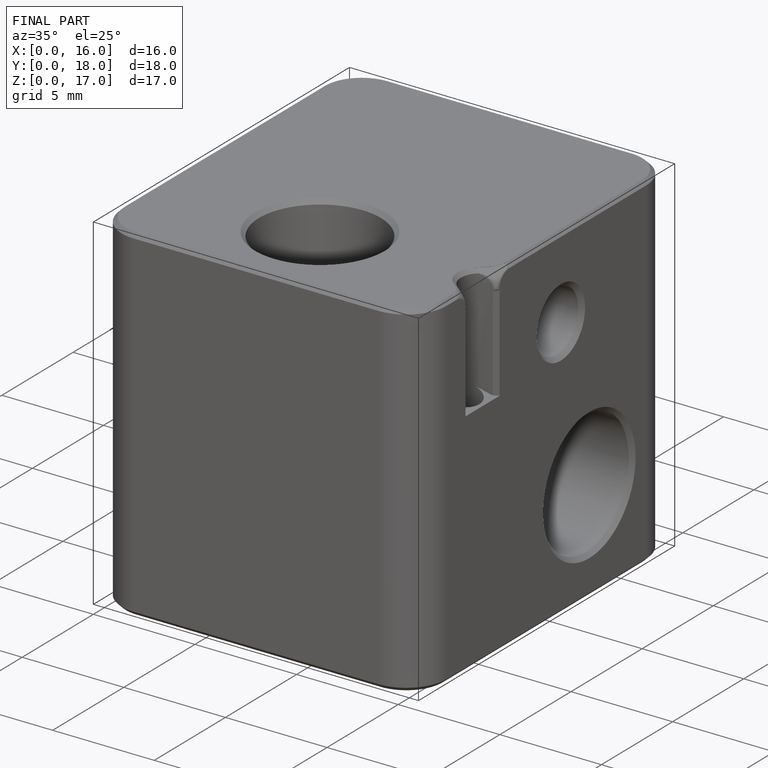
[diagram: finished part — iso view with bounding-box wireframe]
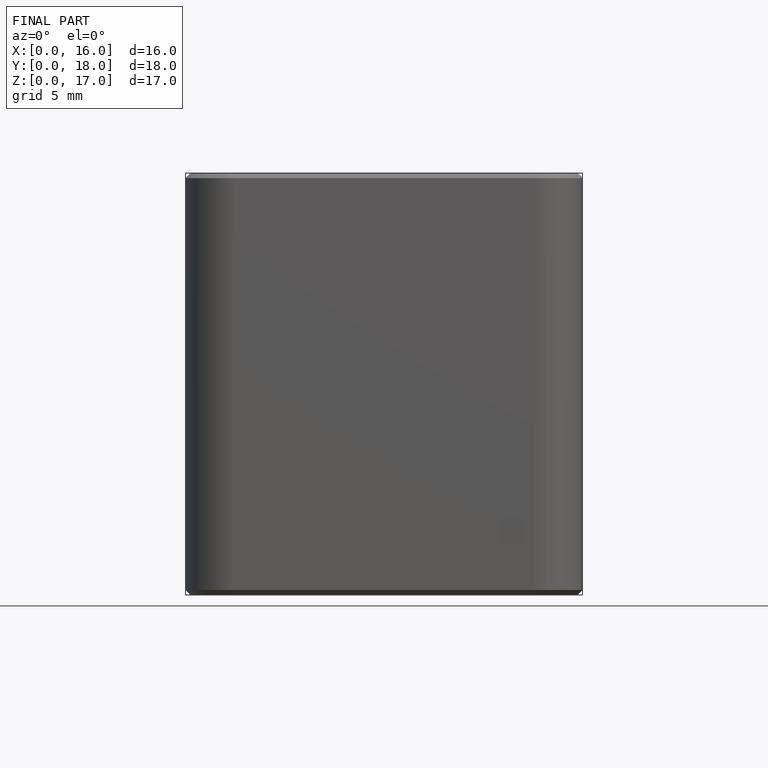
[diagram: finished part — front view with bounding-box wireframe]
